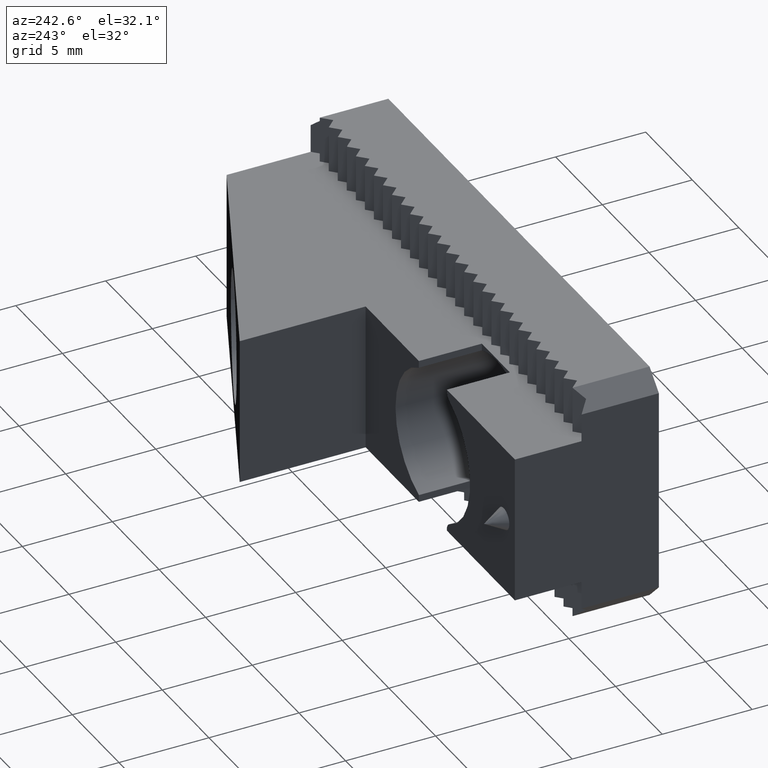
[diagram: clean part render]
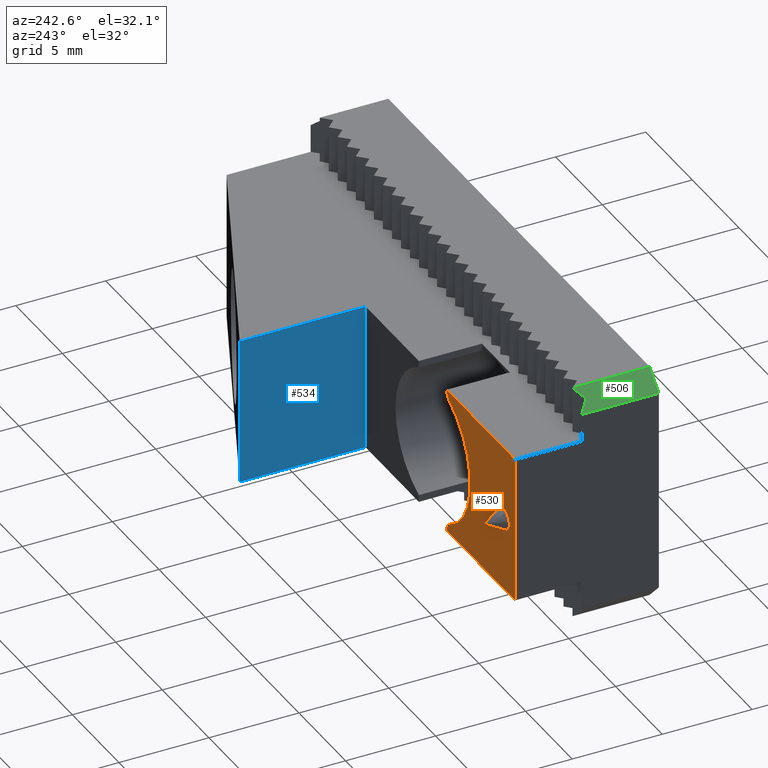
[diagram: same view with three faces highlighted in distinct colors, each labeled with its STEP entity id]
A machine part, auxiliary view with three faces highlighted in distinct colors.
Their STEP definitions:

[orange] entity #530 — the highlighted planar face has unit normal (0, -1, 0).
#24 = DIRECTION ( 'NONE',  ( -0.0000000000000000000, -0.0000000000000000000, -1.000000000000000000 ) ) ;
#25 = DIRECTION ( 'NONE',  ( 0.0000000000000000000, 0.0000000000000000000, -1.000000000000000000 ) ) ;
#26 = DIRECTION ( 'NONE',  ( -0.0000000000000000000, -1.000000000000000000, -0.0000000000000000000 ) ) ;
#27 = CARTESIAN_POINT ( 'NONE',  ( 1.200000000000000000, 8.000000000000000000, 0.0000000000000000000 ) ) ;
#28 = CARTESIAN_POINT ( 'NONE',  ( 0.0000000000000000000, 8.000000000000000000, 6.650000000000000400 ) ) ;
#30 = DIRECTION ( 'NONE',  ( 1.084202172485504400E-016, -1.000000000000000000, 0.0000000000000000000 ) ) ;
#31 = CARTESIAN_POINT ( 'NONE',  ( 8.799999999999998900, 8.000000000000001800, -2.602085213965210600E-015 ) ) ;
#32 = DIRECTION ( 'NONE',  ( 1.000000000000000000, 0.0000000000000000000, 0.0000000000000000000 ) ) ;
#33 = DIRECTION ( 'NONE',  ( -1.000000000000000000, -1.084202172485504400E-016, 0.0000000000000000000 ) ) ;
#34 = CARTESIAN_POINT ( 'NONE',  ( 16.00000000000000000, 8.000000000000001800, 4.100000000000001400 ) ) ;
#49 = CARTESIAN_POINT ( 'NONE',  ( 6.799999999999998900, 8.000000000000000000, -4.031128874149273700 ) ) ;
#51 = DIRECTION ( 'NONE',  ( -1.000000000000000000, -1.084202172485504400E-016, -0.0000000000000000000 ) ) ;
#52 = CARTESIAN_POINT ( 'NONE',  ( 16.00000000000000000, 8.000000000000001800, -4.100000000000001400 ) ) ;
#83 = DIRECTION ( 'NONE',  ( -1.084202172485504400E-016, 1.000000000000000000, -0.0000000000000000000 ) ) ;
#132 = DIRECTION ( 'NONE',  ( 1.000000000000000000, 0.0000000000000000000, -5.204170427930416600E-015 ) ) ;
#141 = ORIENTED_EDGE ( 'NONE', *, *, #432, .T. ) ;
#154 = ORIENTED_EDGE ( 'NONE', *, *, #428, .T. ) ;
#155 = ORIENTED_EDGE ( 'NONE', *, *, #433, .T. ) ;
#156 = ORIENTED_EDGE ( 'NONE', *, *, #420, .T. ) ;
#157 = ORIENTED_EDGE ( 'NONE', *, *, #422, .F. ) ;
#158 = ORIENTED_EDGE ( 'NONE', *, *, #421, .T. ) ;
#159 = ORIENTED_EDGE ( 'NONE', *, *, #435, .F. ) ;
#160 = ORIENTED_EDGE ( 'NONE', *, *, #434, .F. ) ;
#161 = ORIENTED_EDGE ( 'NONE', *, *, #884, .F. ) ;
#162 = ORIENTED_EDGE ( 'NONE', *, *, #885, .T. ) ;
#217 = VERTEX_POINT ( 'NONE', #375 ) ;
#223 = VERTEX_POINT ( 'NONE', #381 ) ;
#228 = VERTEX_POINT ( 'NONE', #386 ) ;
#233 = VERTEX_POINT ( 'NONE', #391 ) ;
#234 = VERTEX_POINT ( 'NONE', #392 ) ;
#237 = VERTEX_POINT ( 'NONE', #395 ) ;
#238 = VERTEX_POINT ( 'NONE', #396 ) ;
#239 = VERTEX_POINT ( 'NONE', #397 ) ;
#243 = VERTEX_POINT ( 'NONE', #401 ) ;
#250 = VERTEX_POINT ( 'NONE', #408 ) ;
#375 = CARTESIAN_POINT ( 'NONE',  ( 7.022222222222221300, 8.000000000000001800, 3.583225665910461100 ) ) ;
#381 = CARTESIAN_POINT ( 'NONE',  ( 7.299999999999998000, 8.000000000000000000, -4.100000000000001400 ) ) ;
#386 = CARTESIAN_POINT ( 'NONE',  ( 1.200000000000000000, 8.000000000000000000, 0.6000000000000000900 ) ) ;
#391 = CARTESIAN_POINT ( 'NONE',  ( 1.200000000000000000, 8.000000000000000000, -0.6000000000000000900 ) ) ;
#392 = CARTESIAN_POINT ( 'NONE',  ( 7.299999999999998000, 8.000000000000000000, -4.031128874149273700 ) ) ;
#395 = CARTESIAN_POINT ( 'NONE',  ( 7.299999999999998000, 8.000000000000000000, 4.031128874149268300 ) ) ;
#396 = CARTESIAN_POINT ( 'NONE',  ( 0.0000000000000000000, 8.000000000000000000, -4.100000000000001400 ) ) ;
#397 = CARTESIAN_POINT ( 'NONE',  ( 7.022222222222221300, 8.000000000000001800, -3.583225665910466400 ) ) ;
#401 = CARTESIAN_POINT ( 'NONE',  ( 0.0000000000000000000, 8.000000000000000000, 4.100000000000001400 ) ) ;
#408 = CARTESIAN_POINT ( 'NONE',  ( 7.299999999999998000, 8.000000000000000000, 4.099999999999996100 ) ) ;
#420 = EDGE_CURVE ( 'NONE', #239, #234, #2174, .T. ) ;
#421 = EDGE_CURVE ( 'NONE', #223, #238, #2176, .T. ) ;
#422 = EDGE_CURVE ( 'NONE', #223, #234, #2173, .T. ) ;
#428 = EDGE_CURVE ( 'NONE', #233, #228, #2183, .T. ) ;
#432 = EDGE_CURVE ( 'NONE', #217, #239, #2188, .T. ) ;
#433 = EDGE_CURVE ( 'NONE', #228, #233, #2193, .T. ) ;
#434 = EDGE_CURVE ( 'NONE', #250, #243, #2194, .T. ) ;
#435 = EDGE_CURVE ( 'NONE', #243, #238, #2192, .T. ) ;
#530 = ADVANCED_FACE ( 'NONE', ( #2572, #2575 ), #3015, .F. ) ;
#620 = EDGE_LOOP ( 'NONE', ( #141, #156, #157, #158, #159, #160, #161, #162 ) ) ;
#672 = EDGE_LOOP ( 'NONE', ( #154, #155 ) ) ;
#884 = EDGE_CURVE ( 'NONE', #237, #250, #2579, .T. ) ;
#885 = EDGE_CURVE ( 'NONE', #237, #217, #2642, .T. ) ;
#1895 = AXIS2_PLACEMENT_3D ( 'NONE', #49, #83, #132 ) ;
#1897 = AXIS2_PLACEMENT_3D ( 'NONE', #5046, #5036, #5038 ) ;
#1899 = AXIS2_PLACEMENT_3D ( 'NONE', #31, #30, #32 ) ;
#1900 = AXIS2_PLACEMENT_3D ( 'NONE', #27, #26, #25 ) ;
#2173 = LINE ( 'NONE', #5054, #2179 ) ;
#2174 = CIRCLE ( 'NONE', #1895, 0.5000000000000004400 ) ;
#2176 = LINE ( 'NONE', #52, #2181 ) ;
#2179 = VECTOR ( 'NONE', #5055, 1000.000000000000000 ) ;
#2181 = VECTOR ( 'NONE', #51, 1000.000000000000000 ) ;
#2183 = CIRCLE ( 'NONE', #1897, 0.6000000000000000900 ) ;
#2188 = CIRCLE ( 'NONE', #1899, 3.999999999999996400 ) ;
#2192 = LINE ( 'NONE', #28, #2198 ) ;
#2193 = CIRCLE ( 'NONE', #1900, 0.6000000000000000900 ) ;
#2194 = LINE ( 'NONE', #34, #2196 ) ;
#2196 = VECTOR ( 'NONE', #33, 1000.000000000000000 ) ;
#2198 = VECTOR ( 'NONE', #24, 1000.000000000000000 ) ;
#2572 = FACE_BOUND ( 'NONE', #672, .T. ) ;
#2575 = FACE_OUTER_BOUND ( 'NONE', #620, .T. ) ;
#2579 = LINE ( 'NONE', #3406, #2638 ) ;
#2638 = VECTOR ( 'NONE', #3411, 1000.000000000000000 ) ;
#2642 = CIRCLE ( 'NONE', #2909, 0.5000000000000004400 ) ;
#2850 = AXIS2_PLACEMENT_3D ( 'NONE', #3011, #3020, #3021 ) ;
#2909 = AXIS2_PLACEMENT_3D ( 'NONE', #3415, #3416, #3417 ) ;
#3011 = CARTESIAN_POINT ( 'NONE',  ( 16.00000000000000000, 8.000000000000001800, 6.650000000000000400 ) ) ;
#3015 = PLANE ( 'NONE',  #2850 ) ;
#3020 = DIRECTION ( 'NONE',  ( 1.084202172485504400E-016, -1.000000000000000000, 0.0000000000000000000 ) ) ;
#3021 = DIRECTION ( 'NONE',  ( 1.000000000000000000, 1.084202172485504400E-016, 0.0000000000000000000 ) ) ;
#3406 = CARTESIAN_POINT ( 'NONE',  ( 7.299999999999998000, 8.000000000000000000, 4.099999999999996100 ) ) ;
#3411 = DIRECTION ( 'NONE',  ( -0.0000000000000000000, -0.0000000000000000000, 1.000000000000000000 ) ) ;
#3415 = CARTESIAN_POINT ( 'NONE',  ( 6.799999999999998900, 8.000000000000000000, 4.031128874149268300 ) ) ;
#3416 = DIRECTION ( 'NONE',  ( -1.084202172485504400E-016, 1.000000000000000000, -0.0000000000000000000 ) ) ;
#3417 = DIRECTION ( 'NONE',  ( 1.000000000000000000, 0.0000000000000000000, 0.0000000000000000000 ) ) ;
#5036 = DIRECTION ( 'NONE',  ( -0.0000000000000000000, -1.000000000000000000, -0.0000000000000000000 ) ) ;
#5038 = DIRECTION ( 'NONE',  ( 0.0000000000000000000, 0.0000000000000000000, -1.000000000000000000 ) ) ;
#5046 = CARTESIAN_POINT ( 'NONE',  ( 1.200000000000000000, 8.000000000000000000, 0.0000000000000000000 ) ) ;
#5054 = CARTESIAN_POINT ( 'NONE',  ( 7.299999999999998000, 8.000000000000000000, 4.099999999999996100 ) ) ;
#5055 = DIRECTION ( 'NONE',  ( -0.0000000000000000000, -0.0000000000000000000, 1.000000000000000000 ) ) ;

[blue] entity #534 — the highlighted planar face has unit normal (1, 0, -0).
#197 = VERTEX_POINT ( 'NONE', #352 ) ;
#198 = VERTEX_POINT ( 'NONE', #356 ) ;
#241 = VERTEX_POINT ( 'NONE', #399 ) ;
#245 = VERTEX_POINT ( 'NONE', #403 ) ;
#352 = CARTESIAN_POINT ( 'NONE',  ( 16.00000000000000000, 15.00000000000000000, -4.100000000000001400 ) ) ;
#356 = CARTESIAN_POINT ( 'NONE',  ( 16.00000000000000000, 8.000000000000001800, -4.100000000000001400 ) ) ;
#399 = CARTESIAN_POINT ( 'NONE',  ( 16.00000000000000000, 8.000000000000001800, 4.100000000000001400 ) ) ;
#403 = CARTESIAN_POINT ( 'NONE',  ( 16.00000000000000000, 15.00000000000000000, 4.100000000000001400 ) ) ;
#534 = ADVANCED_FACE ( 'NONE', ( #2578 ), #3030, .F. ) ;
#612 = EDGE_LOOP ( 'NONE', ( #1045, #1046, #1047, #1048 ) ) ;
#970 = EDGE_CURVE ( 'NONE', #245, #197, #3733, .T. ) ;
#972 = EDGE_CURVE ( 'NONE', #197, #198, #3737, .T. ) ;
#973 = EDGE_CURVE ( 'NONE', #241, #198, #3739, .T. ) ;
#974 = EDGE_CURVE ( 'NONE', #245, #241, #3735, .T. ) ;
#1045 = ORIENTED_EDGE ( 'NONE', *, *, #970, .T. ) ;
#1046 = ORIENTED_EDGE ( 'NONE', *, *, #972, .T. ) ;
#1047 = ORIENTED_EDGE ( 'NONE', *, *, #973, .F. ) ;
#1048 = ORIENTED_EDGE ( 'NONE', *, *, #974, .F. ) ;
#2578 = FACE_OUTER_BOUND ( 'NONE', #612, .T. ) ;
#2853 = AXIS2_PLACEMENT_3D ( 'NONE', #3028, #3033, #3034 ) ;
#3028 = CARTESIAN_POINT ( 'NONE',  ( 16.00000000000000000, 15.00000000000000000, 6.650000000000000400 ) ) ;
#3030 = PLANE ( 'NONE',  #2853 ) ;
#3033 = DIRECTION ( 'NONE',  ( 1.000000000000000000, 0.0000000000000000000, -0.0000000000000000000 ) ) ;
#3034 = DIRECTION ( 'NONE',  ( -0.0000000000000000000, 0.0000000000000000000, -1.000000000000000000 ) ) ;
#3583 = CARTESIAN_POINT ( 'NONE',  ( 16.00000000000000000, 15.00000000000000000, 4.100000000000001400 ) ) ;
#3588 = CARTESIAN_POINT ( 'NONE',  ( 16.00000000000000000, 15.00000000000000000, 6.650000000000000400 ) ) ;
#3589 = DIRECTION ( 'NONE',  ( -0.0000000000000000000, -0.0000000000000000000, -1.000000000000000000 ) ) ;
#3591 = CARTESIAN_POINT ( 'NONE',  ( 16.00000000000000000, 15.00000000000000000, -4.100000000000001400 ) ) ;
#3592 = DIRECTION ( 'NONE',  ( 0.0000000000000000000, -1.000000000000000000, 0.0000000000000000000 ) ) ;
#3593 = CARTESIAN_POINT ( 'NONE',  ( 16.00000000000000000, 8.000000000000001800, 6.650000000000000400 ) ) ;
#3595 = DIRECTION ( 'NONE',  ( -0.0000000000000000000, -0.0000000000000000000, -1.000000000000000000 ) ) ;
#3596 = DIRECTION ( 'NONE',  ( 0.0000000000000000000, -1.000000000000000000, 0.0000000000000000000 ) ) ;
#3733 = LINE ( 'NONE', #3588, #3736 ) ;
#3735 = LINE ( 'NONE', #3583, #3744 ) ;
#3736 = VECTOR ( 'NONE', #3589, 1000.000000000000000 ) ;
#3737 = LINE ( 'NONE', #3591, #3740 ) ;
#3739 = LINE ( 'NONE', #3593, #3742 ) ;
#3740 = VECTOR ( 'NONE', #3592, 1000.000000000000000 ) ;
#3742 = VECTOR ( 'NONE', #3595, 1000.000000000000000 ) ;
#3744 = VECTOR ( 'NONE', #3596, 1000.000000000000000 ) ;

[green] entity #506 — the highlighted planar face has unit normal (-0.7071, 0, 0.7071).
#114 = CARTESIAN_POINT ( 'NONE',  ( 1.000000000000004400, 0.0000000000000000000, 6.650000000000000400 ) ) ;
#129 = CARTESIAN_POINT ( 'NONE',  ( 4.336808689942017700E-016, 4.299999999999999800, 5.649999999999993200 ) ) ;
#130 = CARTESIAN_POINT ( 'NONE',  ( 0.0000000000000000000, 0.0000000000000000000, 5.649999999999992400 ) ) ;
#200 = VERTEX_POINT ( 'NONE', #358 ) ;
#257 = VERTEX_POINT ( 'NONE', #130 ) ;
#260 = VERTEX_POINT ( 'NONE', #129 ) ;
#274 = VERTEX_POINT ( 'NONE', #114 ) ;
#358 = CARTESIAN_POINT ( 'NONE',  ( 1.000000000000004900, 4.283192080588301000, 6.650000000000001200 ) ) ;
#506 = ADVANCED_FACE ( 'NONE', ( #2541 ), #2492, .T. ) ;
#707 = VERTEX_POINT ( 'NONE', #3265 ) ;
#773 = VERTEX_POINT ( 'NONE', #3331 ) ;
#897 = EDGE_CURVE ( 'NONE', #257, #260, #2653, .T. ) ;
#967 = EDGE_CURVE ( 'NONE', #274, #257, #3730, .T. ) ;
#981 = EDGE_CURVE ( 'NONE', #200, #274, #3750, .T. ) ;
#1030 = EDGE_LOOP ( 'NONE', ( #2109, #2110, #2111, #2112, #2113, #2114 ) ) ;
#1463 = EDGE_CURVE ( 'NONE', #260, #773, #4587, .T. ) ;
#1465 = EDGE_CURVE ( 'NONE', #773, #707, #4466, .T. ) ;
#1471 = EDGE_CURVE ( 'NONE', #707, #200, #4603, .T. ) ;
#2109 = ORIENTED_EDGE ( 'NONE', *, *, #1463, .F. ) ;
#2110 = ORIENTED_EDGE ( 'NONE', *, *, #897, .F. ) ;
#2111 = ORIENTED_EDGE ( 'NONE', *, *, #967, .F. ) ;
#2112 = ORIENTED_EDGE ( 'NONE', *, *, #981, .F. ) ;
#2113 = ORIENTED_EDGE ( 'NONE', *, *, #1471, .F. ) ;
#2114 = ORIENTED_EDGE ( 'NONE', *, *, #1465, .F. ) ;
#2485 = CARTESIAN_POINT ( 'NONE',  ( 1.000000000000004400, 0.0000000000000000000, 6.650000000000000400 ) ) ;
#2492 = PLANE ( 'NONE',  #2825 ) ;
#2494 = DIRECTION ( 'NONE',  ( -0.7071067811865487900, 0.0000000000000000000, 0.7071067811865463500 ) ) ;
#2495 = DIRECTION ( 'NONE',  ( 0.7071067811865463500, 0.0000000000000000000, 0.7071067811865487900 ) ) ;
#2541 = FACE_OUTER_BOUND ( 'NONE', #1030, .T. ) ;
#2653 = LINE ( 'NONE', #3421, #2668 ) ;
#2668 = VECTOR ( 'NONE', #3439, 1000.000000000000000 ) ;
#2825 = AXIS2_PLACEMENT_3D ( 'NONE', #2485, #2494, #2495 ) ;
#3265 = CARTESIAN_POINT ( 'NONE',  ( 0.9999294128534632600, 4.283265060519471300, 6.649929412853461000 ) ) ;
#3331 = CARTESIAN_POINT ( 'NONE',  ( 0.4916666666666656400, 3.791666666666666100, 6.141666666666659500 ) ) ;
#3421 = CARTESIAN_POINT ( 'NONE',  ( 0.0000000000000000000, 4.299999999999999800, 5.649999999999992400 ) ) ;
#3439 = DIRECTION ( 'NONE',  ( 0.0000000000000000000, 1.000000000000000000, 0.0000000000000000000 ) ) ;
#3571 = CARTESIAN_POINT ( 'NONE',  ( 1.000000000000004400, 0.0000000000000000000, 6.650000000000000400 ) ) ;
#3582 = DIRECTION ( 'NONE',  ( -0.7071067811865463500, 0.0000000000000000000, -0.7071067811865487900 ) ) ;
#3602 = CARTESIAN_POINT ( 'NONE',  ( 1.000000000000004400, 0.0000000000000000000, 6.650000000000000400 ) ) ;
#3612 = DIRECTION ( 'NONE',  ( 0.0000000000000000000, -1.000000000000000000, 0.0000000000000000000 ) ) ;
#3730 = LINE ( 'NONE', #3571, #3731 ) ;
#3731 = VECTOR ( 'NONE', #3582, 1000.000000000000000 ) ;
#3750 = LINE ( 'NONE', #3602, #3757 ) ;
#3757 = VECTOR ( 'NONE', #3612, 1000.000000000000000 ) ;
#4151 = CARTESIAN_POINT ( 'NONE',  ( -0.4113079434831657900, 2.918297781439777700, 5.238692056516825300 ) ) ;
#4280 = CARTESIAN_POINT ( 'NONE',  ( 2.100318262660301600, 2.128484508096971900, 7.750318262660301500 ) ) ;
#4281 = DIRECTION ( 'NONE',  ( 0.5708281704241386900, -0.5901782778961445200, 0.5708281704241406900 ) ) ;
#4285 = DIRECTION ( 'NONE',  ( 0.5836585719174652900, 0.5645222252972221800, 0.5836585719174672800 ) ) ;
#4296 = CARTESIAN_POINT ( 'NONE',  ( 2.442966235892288100, 2.791311735004750700, 8.092966235892289400 ) ) ;
#4297 = DIRECTION ( 'NONE',  ( 0.5708281704241386900, -0.5901782778961445200, 0.5708281704241406900 ) ) ;
#4466 = LINE ( 'NONE', #4151, #4594 ) ;
#4587 = LINE ( 'NONE', #4280, #4590 ) ;
#4590 = VECTOR ( 'NONE', #4281, 1000.000000000000000 ) ;
#4594 = VECTOR ( 'NONE', #4285, 1000.000000000000100 ) ;
#4603 = LINE ( 'NONE', #4296, #4606 ) ;
#4606 = VECTOR ( 'NONE', #4297, 1000.000000000000000 ) ;